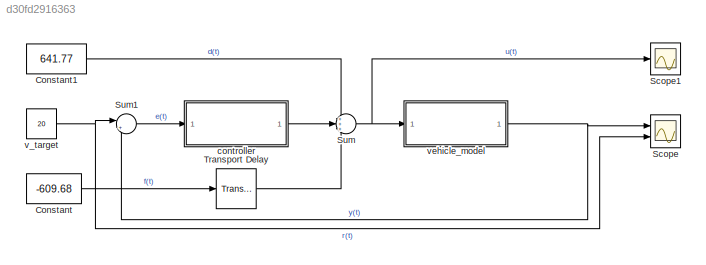
MODEL slx_d30fd2916363
KIND model
CONFIG AbsTol = auto
CONFIG EnableMultiTasking = off
CONFIG FixedStep = auto
CONFIG InitFcn = A=1.2\nrho=1\nc = 0.4\nb = 10\nm = 1250
CONFIG MaxStep = auto
CONFIG MinStep = auto
CONFIG RelTol = 1e-3
CONFIG SampleTimeConstraint = Unconstrained
CONFIG Solver = VariableStepAuto
CONFIG SolverName = VariableStepAuto
CONFIG StartTime = 0.0
CONFIG StopTime = 100
BLOCK [Constant] Constant
  Value = -609.68
BLOCK [Constant] Constant1
  Value = 641.77
BLOCK [Scope] Scope
  Floating = off
  NumInputPorts = 2
  Ports = [2]
  ScopeSpecificationString = Simulink.scopes.TimeScopeBlockCfg('CurrentConfiguration', extmgr.ConfigurationSet(extmgr.Configuration('Core','General UI',true),extmgr.Configuration('Core','Source UI',true),extmgr.Configuration('Sources','WiredSimulink',true),extmgr.Configuration('Visuals','Time Domain',true,'SerializedDisplays',{struct('MinYLimReal','14.36161','MaxYLimReal','20.74547','YLabelReal','','MinYLimMag','14.36161','Ma...<+1393ch>
BLOCK [Scope] Scope1
  Floating = off
  NumInputPorts = 1
  Ports = [1]
  ScopeSpecificationString = Simulink.scopes.TimeScopeBlockCfg('CurrentConfiguration', extmgr.ConfigurationSet(extmgr.Configuration('Core','General UI',true),extmgr.Configuration('Core','Source UI',true),extmgr.Configuration('Sources','WiredSimulink',true,'DataLoggingVariableName','ScopeData1'),extmgr.Configuration('Visuals','Time Domain',true,'SerializedDisplays',{struct('MinYLimReal','139.58385','MaxYLimReal','1669.79068','...<+1416ch>
BLOCK [Sum] Sum
  IconShape = round
  InputSameDT = off
  Inputs = +++
  OutDataTypeStr = Inherit: Inherit via internal rule
  Ports = [3, 1]
  SaturateOnIntegerOverflow = off
BLOCK [Sum] Sum1
  IconShape = round
  InputSameDT = off
  Inputs = |+-
  OutDataTypeStr = Inherit: Inherit via internal rule
  Ports = [2, 1]
  SaturateOnIntegerOverflow = off
BLOCK [TransportDelay] Transport Delay
  DelayTime = 0.5
  Ports = [1, 1]
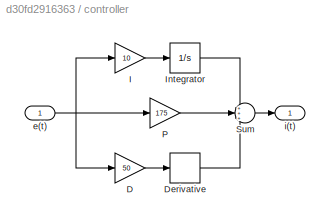
BLOCK [SubSystem] controller
  Ports = [1, 1]
  RequestExecContextInheritance = off
BLOCK [Gain] controller/D
  Gain = 50
  OutDataTypeStr = Inherit: Inherit via internal rule
  ParamDataTypeStr = Inherit: Inherit via internal rule
  SaturateOnIntegerOverflow = off
BLOCK [Derivative] controller/Derivative
  CoefficientInTFapproximation = 0
BLOCK [Gain] controller/I
  Gain = 10
  OutDataTypeStr = Inherit: Inherit via internal rule
  ParamDataTypeStr = Inherit: Inherit via internal rule
  SaturateOnIntegerOverflow = off
BLOCK [Integrator] controller/Integrator
  Ports = [1, 1]
BLOCK [Gain] controller/P
  Gain = 175
  OutDataTypeStr = Inherit: Inherit via internal rule
  ParamDataTypeStr = Inherit: Inherit via internal rule
  SaturateOnIntegerOverflow = off
BLOCK [Sum] controller/Sum
  IconShape = round
  InputSameDT = off
  Inputs = +++
  OutDataTypeStr = Inherit: Inherit via internal rule
  Ports = [3, 1]
  SaturateOnIntegerOverflow = off
BLOCK [Inport] controller/e(t)
  IconDisplay = Port number
BLOCK [Outport] controller/i(t)
  IconDisplay = Port number
BLOCK [Constant] v_target
  Value = 20
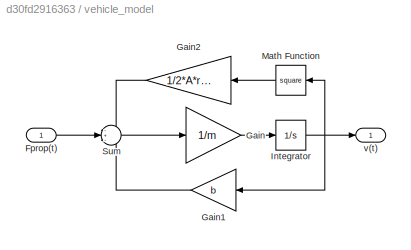
BLOCK [SubSystem] vehicle_model
  Ports = [1, 1]
  RequestExecContextInheritance = off
BLOCK [Inport] vehicle_model/Fprop(t)
  IconDisplay = Port number
BLOCK [Gain] vehicle_model/Gain
  Gain = 1/m
  OutDataTypeStr = Inherit: Inherit via internal rule
  ParamDataTypeStr = Inherit: Inherit via internal rule
  SaturateOnIntegerOverflow = off
BLOCK [Gain] vehicle_model/Gain1
  Gain = b
  OutDataTypeStr = Inherit: Inherit via internal rule
  ParamDataTypeStr = Inherit: Inherit via internal rule
  SaturateOnIntegerOverflow = off
BLOCK [Gain] vehicle_model/Gain2
  Gain = 1/2*A*rho*c
  OutDataTypeStr = Inherit: Inherit via internal rule
  ParamDataTypeStr = Inherit: Inherit via internal rule
  SaturateOnIntegerOverflow = off
BLOCK [Integrator] vehicle_model/Integrator
  InitialCondition = 15
  Ports = [1, 1]
BLOCK [Math] vehicle_model/Math Function
  Operator = square
  Ports = [1, 1]
  SignedPower = off
BLOCK [Sum] vehicle_model/Sum
  IconShape = round
  InputSameDT = off
  Inputs = -+-
  OutDataTypeStr = Inherit: Inherit via internal rule
  Ports = [3, 1]
  SaturateOnIntegerOverflow = off
BLOCK [Outport] vehicle_model/v(t)
  IconDisplay = Port number
LINE Constant1:1 -> Sum:1
LINE Constant:1 -> Transport Delay:1
LINE Sum1:1 -> controller:1
NET Sum:1 -> Scope1:1, vehicle_model:1
LINE Transport Delay:1 -> Sum:3
LINE controller/D:1 -> controller/Derivative:1
LINE controller/Derivative:1 -> controller/Sum:3
LINE controller/I:1 -> controller/Integrator:1
LINE controller/Integrator:1 -> controller/Sum:1
LINE controller/P:1 -> controller/Sum:2
LINE controller/Sum:1 -> controller/i(t):1
NET controller/e(t):1 -> controller/D:1, controller/I:1, controller/P:1
LINE controller:1 -> Sum:2
NET v_target:1 -> Scope:2, Sum1:1
LINE vehicle_model/Fprop(t):1 -> vehicle_model/Sum:2
LINE vehicle_model/Gain1:1 -> vehicle_model/Sum:3
LINE vehicle_model/Gain2:1 -> vehicle_model/Sum:1
LINE vehicle_model/Gain:1 -> vehicle_model/Integrator:1
NET vehicle_model/Integrator:1 -> vehicle_model/Gain1:1, vehicle_model/Math Function:1, vehicle_model/v(t):1
LINE vehicle_model/Math Function:1 -> vehicle_model/Gain2:1
LINE vehicle_model/Sum:1 -> vehicle_model/Gain:1
NET vehicle_model:1 -> Scope:1, Sum1:2
note: NET lines group one-source signal fan-out (src -> all destinations, sorted); 1:1 wires keep LINE
